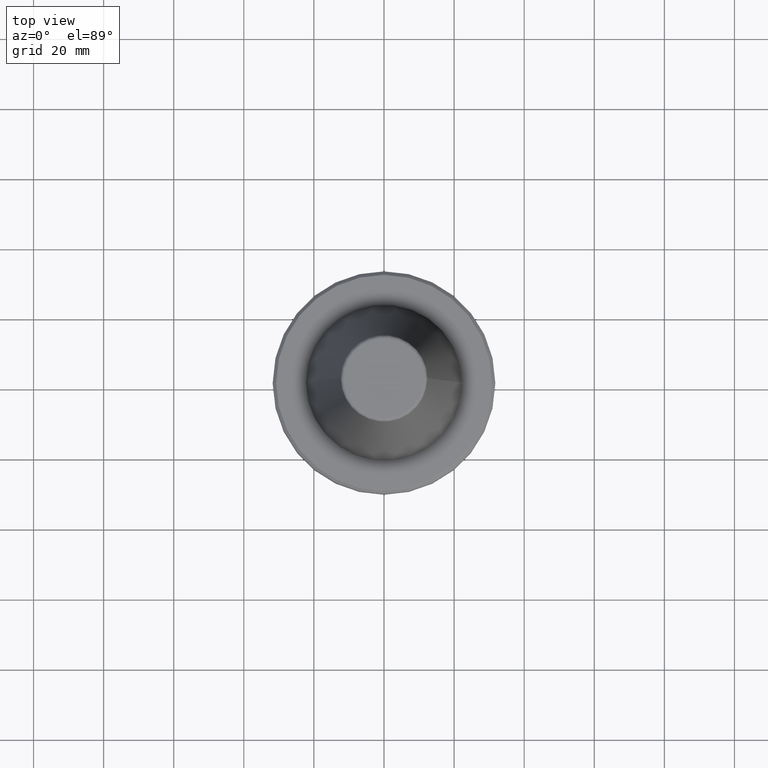
[diagram: clean part render]
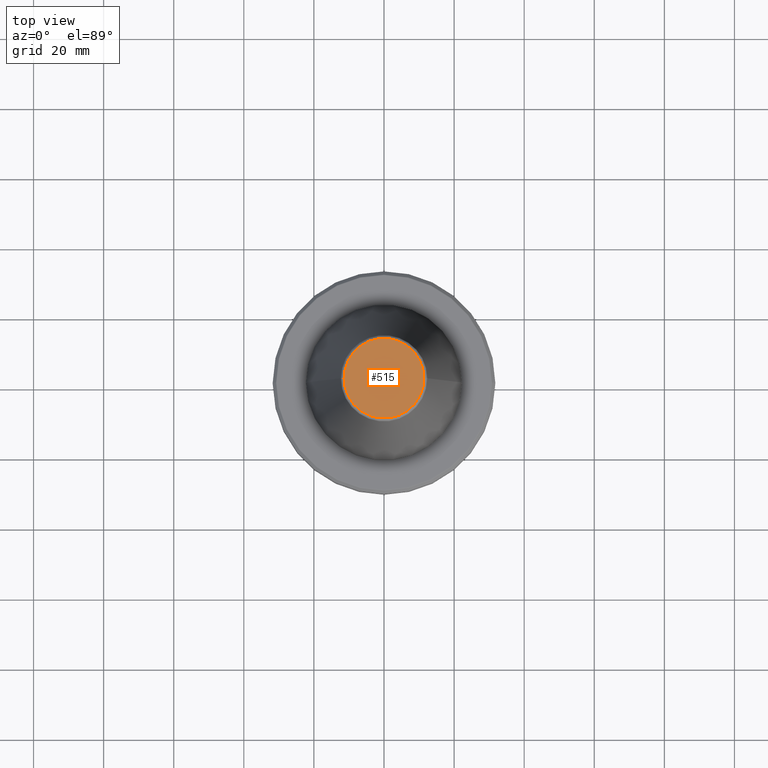
[diagram: same view with one face highlighted and labeled with its STEP entity id]
A machine part, top view. The second image highlights one B-rep face of the part: STEP entity #515.
In plain terms, the highlighted planar face has unit normal (0, -0, 1).
Its self-contained STEP definition (entity closure, byte-faithful):
#53 = EDGE_CURVE ( 'NONE', #476, #508, #572, .T. ) ;
#63 = DIRECTION ( 'NONE',  ( 1.000000000000000000, 0.0000000000000000000, 0.0000000000000000000 ) ) ;
#224 = DIRECTION ( 'NONE',  ( -0.0000000000000000000, -0.0000000000000000000, 1.000000000000000000 ) ) ;
#270 = DIRECTION ( 'NONE',  ( 1.000000000000000000, 0.0000000000000000000, 0.0000000000000000000 ) ) ;
#341 = AXIS2_PLACEMENT_3D ( 'NONE', #1223, #671, #63 ) ;
#365 = DIRECTION ( 'NONE',  ( 0.0000000000000000000, -0.0000000000000000000, 1.000000000000000000 ) ) ;
#368 = AXIS2_PLACEMENT_3D ( 'NONE', #1246, #224, #1242 ) ;
#398 = ORIENTED_EDGE ( 'NONE', *, *, #1197, .T. ) ;
#411 = CARTESIAN_POINT ( 'NONE',  ( 11.38516258961893100, 0.0000000000000000000, 68.40000000000000600 ) ) ;
#459 = PLANE ( 'NONE',  #1148 ) ;
#465 = CARTESIAN_POINT ( 'NONE',  ( 0.0000000000000000000, -8.337524199435086500E-014, 68.39999999999999100 ) ) ;
#476 = VERTEX_POINT ( 'NONE', #411 ) ;
#508 = VERTEX_POINT ( 'NONE', #585 ) ;
#515 = ADVANCED_FACE ( 'NONE', ( #906 ), #459, .T. ) ;
#568 = CIRCLE ( 'NONE', #341, 11.38516258961893100 ) ;
#572 = CIRCLE ( 'NONE', #368, 11.38516258961893100 ) ;
#585 = CARTESIAN_POINT ( 'NONE',  ( -11.38516258961893100, 1.454871700296352000E-015, 68.40000000000000600 ) ) ;
#671 = DIRECTION ( 'NONE',  ( -0.0000000000000000000, -0.0000000000000000000, 1.000000000000000000 ) ) ;
#906 = FACE_OUTER_BOUND ( 'NONE', #908, .T. ) ;
#907 = ORIENTED_EDGE ( 'NONE', *, *, #53, .T. ) ;
#908 = EDGE_LOOP ( 'NONE', ( #907, #398 ) ) ;
#1148 = AXIS2_PLACEMENT_3D ( 'NONE', #465, #365, #270 ) ;
#1197 = EDGE_CURVE ( 'NONE', #508, #476, #568, .T. ) ;
#1223 = CARTESIAN_POINT ( 'NONE',  ( 0.0000000000000000000, 0.0000000000000000000, 68.40000000000000600 ) ) ;
#1242 = DIRECTION ( 'NONE',  ( 1.000000000000000000, 0.0000000000000000000, 0.0000000000000000000 ) ) ;
#1246 = CARTESIAN_POINT ( 'NONE',  ( 0.0000000000000000000, 0.0000000000000000000, 68.40000000000000600 ) ) ;